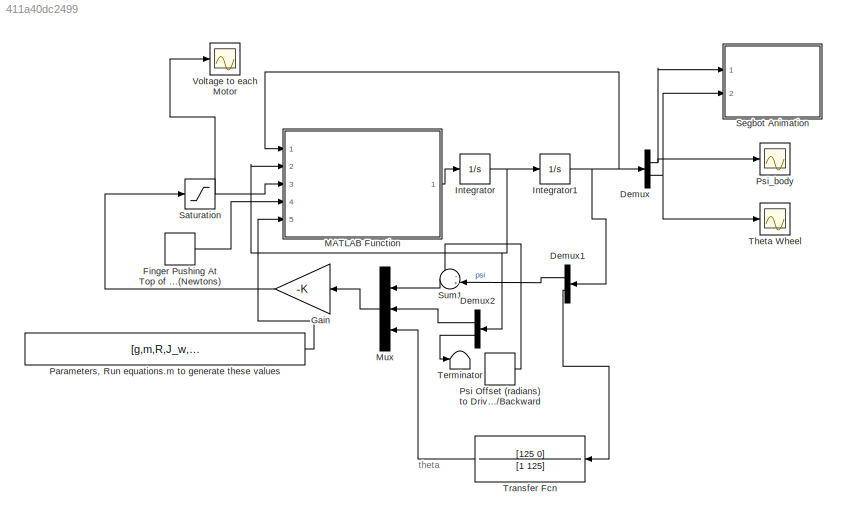
MODEL slx_411a40dc2499
KIND model
CONFIG AbsTol = auto
CONFIG EnableMultiTasking = off
CONFIG FixedStep = auto
CONFIG MaxStep = auto
CONFIG MinStep = auto
CONFIG RelTol = 1e-6
CONFIG SampleTimeConstraint = Unconstrained
CONFIG SolverName = VariableStepAuto
CONFIG StartTime = 0.0
CONFIG StopTime = 200
BLOCK [Demux] Demux
  Outputs = 2
  Ports = [1, 2]
BLOCK [Demux] Demux1
  Outputs = 2
  Ports = [1, 2]
BLOCK [Demux] Demux2
  Outputs = 2
  Ports = [1, 2]
BLOCK [DiscretePulseGenerator] Finger Pushing At Top of Body (Newtons)
  Amplitude = 0.1
  Period = 4
  PhaseDelay = 2
  Ports = [0, 1]
  PulseType = Time based
  PulseWidth = 50
BLOCK [Gain] Gain
  Gain = -K
  Multiplication = Matrix(K*u)
BLOCK [Integrator] Integrator
  InitialCondition = [0 0]
  Ports = [1, 1]
BLOCK [Integrator] Integrator1
  InitialCondition = [0.1 0]
  Ports = [1, 1]
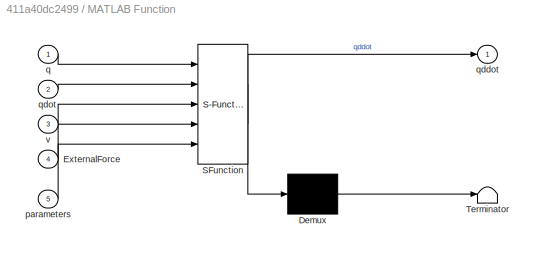
BLOCK [SubSystem] MATLAB Function
  ErrorFcn = Stateflow.Translate.translate
  PermitHierarchicalResolution = ExplicitOnly
  Ports = [5, 1]
  RequestExecContextInheritance = off
  SFBlockType = MATLAB Function
  TreatAsAtomicUnit = on
BLOCK [Demux] MATLAB Function/ Demux 
  Outputs = 1
  Ports = [1, 1]
BLOCK [S-Function] MATLAB Function/ SFunction 
  EnableBusSupport = on
  FunctionName = sf_sfun
  PortCounts = [5 2]
  Ports = [5, 2]
  SFcnIsStateOwnerBlock = off
  SFunctionDeploymentMode = off
  Tag = Stateflow S-Function 2
BLOCK [Terminator] MATLAB Function/ Terminator 
BLOCK [Inport] MATLAB Function/ExternalForce
  Port = 4
BLOCK [Inport] MATLAB Function/parameters
  Port = 5
BLOCK [Inport] MATLAB Function/q
BLOCK [Outport] MATLAB Function/qddot
  VectorParamsAs1DForOutWhenUnconnected = off
BLOCK [Inport] MATLAB Function/qdot
  Port = 2
BLOCK [Inport] MATLAB Function/v
  Port = 3
BLOCK [Mux] Mux
  DisplayOption = bar
  Inputs = 3
  Ports = [3, 1]
BLOCK [Constant] Parameters,  Run equations.m to generate these values
  Value = [g,m,R,J_w,M,L,J_psi,J_m,R_m,K_b,K_t,n,f_m,alpha,beta]
BLOCK [DiscretePulseGenerator] Psi Offset (radians) to Drive Forward//Backward
  Amplitude = 0
  Period = 4
  PhaseDelay = 2
  Ports = [0, 1]
  PulseType = Time based
  PulseWidth = 50
BLOCK [Scope] Psi_body
  Floating = off
  NumInputPorts = 1
  Ports = [1]
  ScopeSpecificationString = Simulink.scopes.TimeScopeBlockCfg('CurrentConfiguration', extmgr.ConfigurationSet(extmgr.Configuration('Core','General UI',true),extmgr.Configuration('Core','Source UI',true),extmgr.Configuration('Sources','WiredSimulink',true,'DataLoggingVariableName','ScopeData1'),extmgr.Configuration('Visuals','Time Domain',true,'SerializedDisplays',{struct('MinYLimReal','-0.03681','MaxYLimReal','0.1152','YLabe...<+1470ch>
BLOCK [Saturate] Saturation
  LowerLimit = -12
  UpperLimit = 12
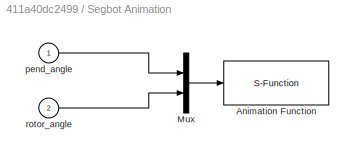
BLOCK [SubSystem] Segbot Animation
  Ports = [2]
  RequestExecContextInheritance = off
  ShowPortLabels = none
BLOCK [S-Function] Segbot Animation/Animation Function
  DeleteFcn = if ~isempty(findobj('type','figure','name','dblpend1 Animation'));close('dblpend1 Animation'); end;
  EnableBusSupport = off
  FunctionName = segbotanim
  Parameters = 0.05
  Ports = [1]
  SFcnIsStateOwnerBlock = off
  SFunctionDeploymentMode = off
BLOCK [Mux] Segbot Animation/Mux
  DisplayOption = bar
  Inputs = 2
  Ports = [2, 1]
BLOCK [Inport] Segbot Animation/pend_angle
BLOCK [Inport] Segbot Animation/rotor_angle
  Port = 2
BLOCK [Sum] Sum1
  Inputs = -+|
  Ports = [2, 1]
BLOCK [Terminator] Terminator
BLOCK [Scope] Theta Wheel
  Floating = off
  NumInputPorts = 1
  Ports = [1]
  ScopeSpecificationString = Simulink.scopes.TimeScopeBlockCfg('CurrentConfiguration', extmgr.ConfigurationSet(extmgr.Configuration('Core','General UI',true),extmgr.Configuration('Core','Source UI',true),extmgr.Configuration('Sources','WiredSimulink',true),extmgr.Configuration('Visuals','Time Domain',true,'SerializedDisplays',{struct('MinYLimReal','-1.92006','MaxYLimReal','17.28058','YLabelReal','','MinYLimMag','0.00000','Max...<+1406ch>
BLOCK [TransferFcn] Transfer Fcn
  Denominator = [1 125]
  Numerator = [125 0]
BLOCK [Scope] Voltage to each Motor
  Floating = off
  NumInputPorts = 1
  Ports = [1]
  ScopeSpecificationString = Simulink.scopes.TimeScopeBlockCfg('CurrentConfiguration', extmgr.ConfigurationSet(extmgr.Configuration('Core','General UI',true),extmgr.Configuration('Core','Source UI',true),extmgr.Configuration('Sources','WiredSimulink',true,'DataLoggingVariableName','ScopeData1'),extmgr.Configuration('Visuals','Time Domain',true,'SerializedDisplays',{struct('MinYLimReal','-3.86766','MaxYLimReal','5.32993','YLab...<+1432ch>
ANNOTATION (root): theta
LINE Demux1:1 -> Sum1:2
LINE Demux1:2 -> Transfer Fcn:1
LINE Demux2:1 -> Mux:2
LINE Demux2:2 -> Terminator:1
NET Demux:1 -> Psi_body:1, Segbot Animation:1
NET Demux:2 -> Segbot Animation:2, Theta Wheel:1
LINE Finger Pushing At Top of Body (Newtons):1 -> MATLAB Function:4
LINE Gain:1 -> Saturation:1
NET Integrator1:1 -> Demux1:1, Demux:1, MATLAB Function:1
NET Integrator:1 -> Demux2:1, Integrator1:1, MATLAB Function:2
LINE MATLAB Function:1 -> Integrator:1
LINE Mux:1 -> Gain:1
LINE Parameters,  Run equations.m to generate these values:1 -> MATLAB Function:5
LINE Psi Offset (radians) to Drive Forward//Backward:1 -> Sum1:1
NET Saturation:1 -> MATLAB Function:3, Voltage to each Motor:1
LINE Segbot Animation/Mux:1 -> Segbot Animation/Animation Function:1
LINE Segbot Animation/pend_angle:1 -> Segbot Animation/Mux:1
LINE Segbot Animation/rotor_angle:1 -> Segbot Animation/Mux:2
LINE Sum1:1 -> Mux:1
LINE Transfer Fcn:1 -> Mux:3
note: NET lines group one-source signal fan-out (src -> all destinations, sorted); 1:1 wires keep LINE
CHART MATLAB Function states=1 transitions=1
  STATE_LABEL 'eML_blk_kernel()'
  STATE_LABEL 'SCRIPT:\nfunction qddot = fcn(q,qdot,v,ExternalForce,parameters)\n\n% These are the parameters for the Lego NXTway.\n% g = 9.81;\n% m = 0.03;\n% R = 0.04;\n% J_w = (m*R^2)/2;\n% M = 0.6;\n% L = 0.144/2;\n% J_psi = (M*L^2)/3;\n% J_m = 1e-5;\n% R_m = 6.69;\n% K_b = 0.468;\n% K_t = 0.317;\n% n = 1;\n% f_m = 0.0022;\n% alpha = (n*K_t)/R_m;\n% beta = ((n*K_t*K_b)/R_m) + f_m;\n\n% input parameters so that you can change th...<+714ch>'
CHART  states=0 transitions=0
